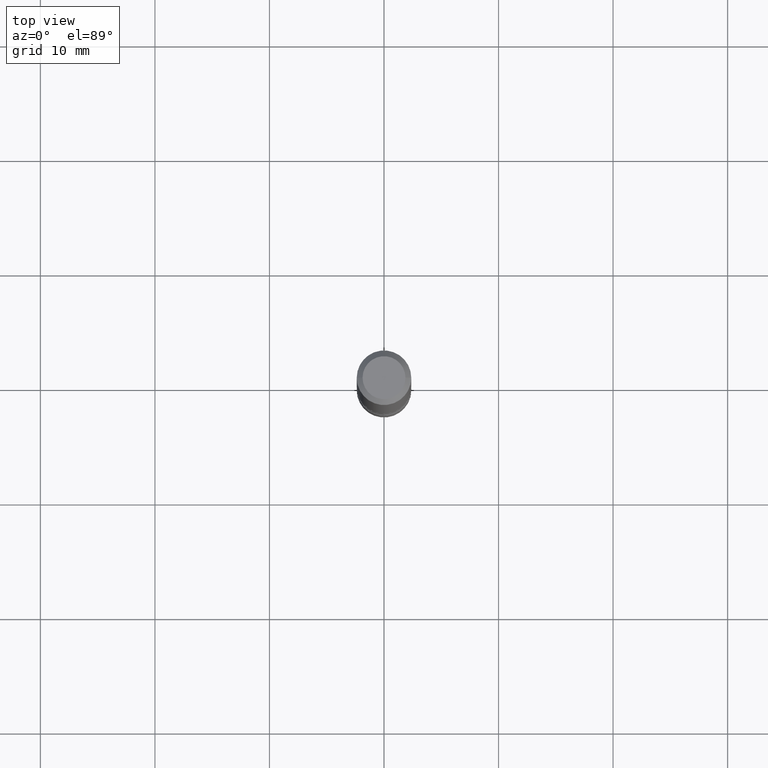
[diagram: clean part render]
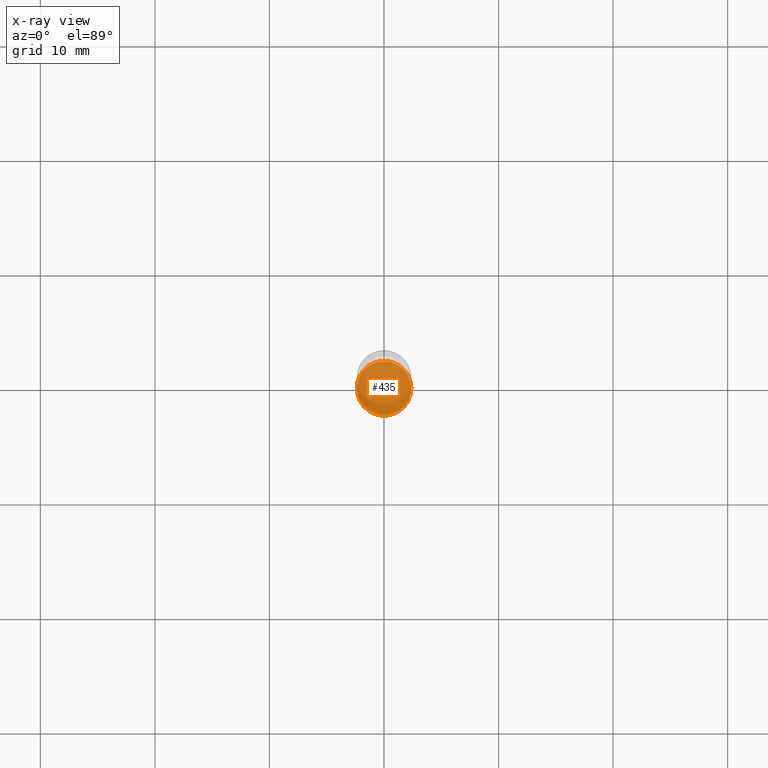
[diagram: x-ray — body ghosted, one internal face saturated and labeled with its STEP entity id]
A machine part, top view, then the same camera in x-ray: the body is ghosted and one INTERNAL B-rep face — a face not visible from any outside direction — is saturated and labeled: STEP entity #435.
In plain terms, the highlighted planar face has unit normal (0, -0, -1).
Its self-contained STEP definition (entity closure, byte-faithful):
#52 = DIRECTION ( 'NONE',  ( -1.000000000000000000, 6.982962677686265922E-15, -4.876176775795935793E-29 ) ) ;
#58 = ORIENTED_EDGE ( 'NONE', *, *, #355, .T. ) ;
#90 = VERTEX_POINT ( 'NONE', #235 ) ;
#116 = CIRCLE ( 'NONE', #542, 0.09375000000000002776 ) ;
#129 = CARTESIAN_POINT ( 'NONE',  ( 0.09375000000000002776, -8.074050596074771916E-15, -2.125000000000000000 ) ) ;
#134 = ORIENTED_EDGE ( 'NONE', *, *, #438, .T. ) ;
#210 = CARTESIAN_POINT ( 'NONE',  ( 5.196621213143415268E-29, -7.419397845041685201E-15, -2.125000000000000000 ) ) ;
#216 = DIRECTION ( 'NONE',  ( -2.445468806185136597E-29, 3.491481338843145583E-15, 1.000000000000000000 ) ) ;
#235 = CARTESIAN_POINT ( 'NONE',  ( -0.09375000000000002776, -7.355544561217034463E-15, -2.125000000000000000 ) ) ;
#257 = DIRECTION ( 'NONE',  ( 2.438088387897960049E-29, -3.491481338843145188E-15, -1.000000000000000000 ) ) ;
#261 = CARTESIAN_POINT ( 'NONE',  ( 5.196621213143415268E-29, -7.419397845041685201E-15, -2.125000000000000000 ) ) ;
#297 = CIRCLE ( 'NONE', #382, 0.09375000000000002776 ) ;
#305 = FACE_OUTER_BOUND ( 'NONE', #552, .T. ) ;
#340 = CARTESIAN_POINT ( 'NONE',  ( 8.726388948129611336E-30, -1.361158663068067946E-14, -2.125000000000000000 ) ) ;
#355 = EDGE_CURVE ( 'NONE', #484, #90, #297, .T. ) ;
#382 = AXIS2_PLACEMENT_3D ( 'NONE', #210, #513, #477 ) ;
#384 = AXIS2_PLACEMENT_3D ( 'NONE', #340, #257, #52 ) ;
#435 = ADVANCED_FACE ( 'NONE', ( #305 ), #479, .F. ) ;
#438 = EDGE_CURVE ( 'NONE', #90, #484, #116, .T. ) ;
#477 = DIRECTION ( 'NONE',  ( 1.000000000000000000, -6.982962677686270655E-15, 0.000000000000000000 ) ) ;
#479 = PLANE ( 'NONE',  #384 ) ;
#484 = VERTEX_POINT ( 'NONE', #129 ) ;
#513 = DIRECTION ( 'NONE',  ( -2.445468806185136597E-29, 3.491481338843145583E-15, 1.000000000000000000 ) ) ;
#542 = AXIS2_PLACEMENT_3D ( 'NONE', #261, #216, #553 ) ;
#552 = EDGE_LOOP ( 'NONE', ( #58, #134 ) ) ;
#553 = DIRECTION ( 'NONE',  ( 1.000000000000000000, -6.982962677686270655E-15, 0.000000000000000000 ) ) ;